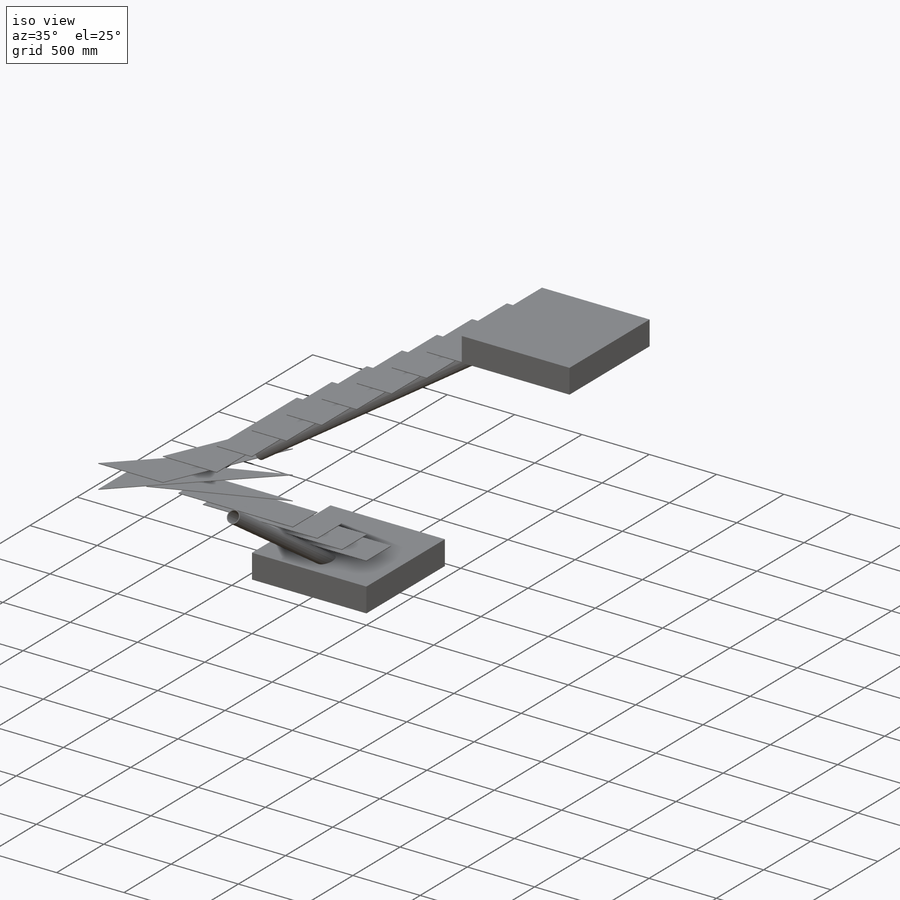
[diagram: iso view]
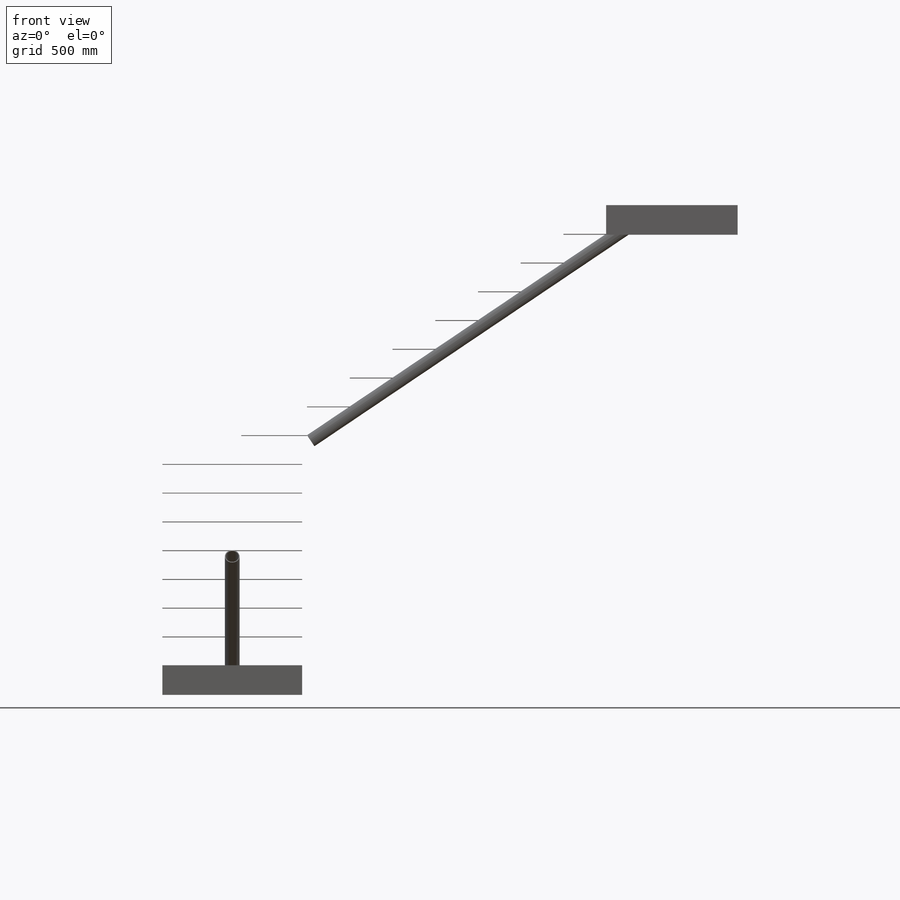
[diagram: front view]
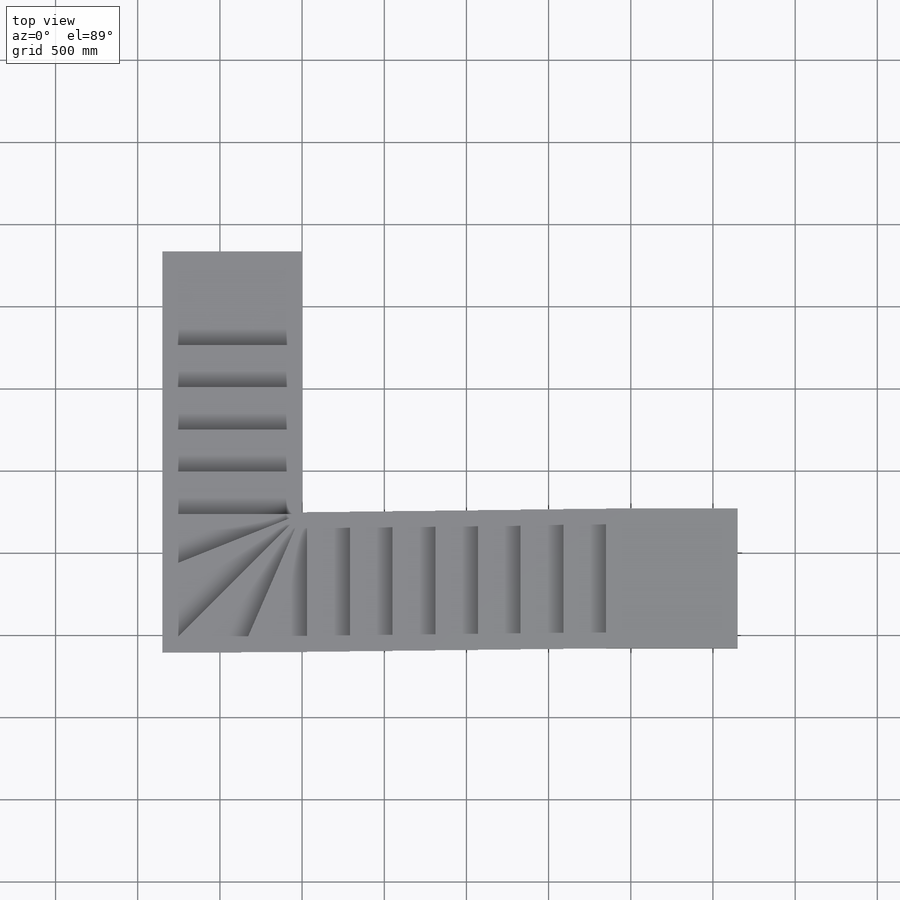
[diagram: top view]
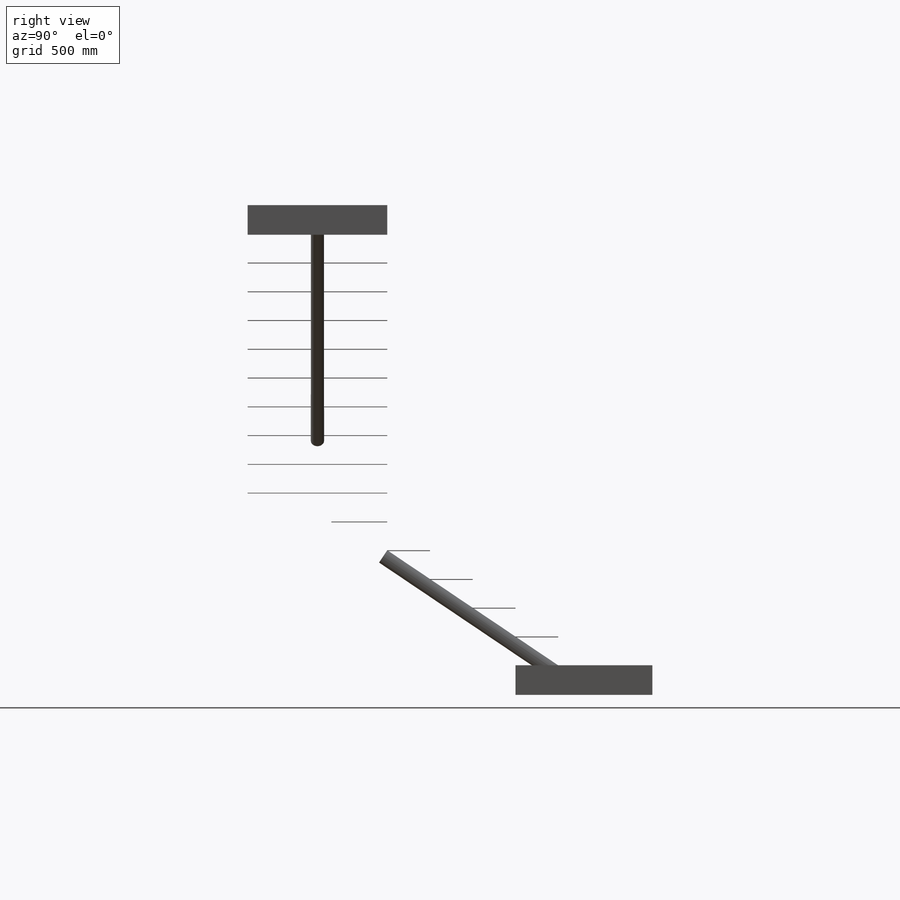
[diagram: right view]
SOLIDWORKS PART (.sldprt)
format: sldprt  version: not decoded by parser v0  size: 400,896 bytes
history: native  units: mm
features: sketch x26, plane x21, extrude x19, material x1 + 1 further entry (+15 scaffold rows collapsed)
feature tree (83):
  scaffold x15  (default folders/planes/origin — collapsed)
  material  "Material <not specified>"
  "Annotations"  RD1=700mm
  plane  "Plane1"  Offset=175mm
  plane  "Plane2"  Offset=350mm
  plane  "Plane3"  Offset=525mm
  plane  "Plane4"  Offset=700mm
  plane  "Plane5"  Offset=875mm
  plane  "Plane6"  Offset=1050mm
  plane  "Plane7"  Offset=1225mm
  plane  "Plane8"  Offset=1400mm
  plane  "Plane9"  Offset=1575mm
  plane  "Plane10"  Offset=1750mm
  plane  "Plane11"  Offset=1925mm
  plane  "Plane12"  Offset=2100mm
  plane  "Plane13"  Offset=2275mm
  plane  "Plane14"  Offset=2450mm
  plane  "Plane15"  Offset=2625mm
  plane  "Plane16"  Offset=2800mm
  sketch  "Sketch1"  dims[D1=260.0mm]
  extrude  "Extrude1"  Depth=5mm
  sketch  "Sketch2"  dims[D1=260.0mm]
  extrude  "Extrude2"  Depth=5mm
  sketch  "Sketch3"  dims[D1=260.0mm]
  extrude  "Extrude3"  Depth=5mm
  sketch  "Sketch4"  dims[D1=260.0mm]
  extrude  "Extrude4"  Depth=5mm
  sketch  "Sketch6"  dims[D1=340.0mm]
  extrude  "Extrude6"  Depth=5mm
  sketch  "Sketch7"  dims[D1=510.0mm]
  extrude  "Extrude7"  Depth=5mm
  sketch  "Sketch8"  dims[D1=480.0mm]
  extrude  "Extrude8"  Depth=5mm
  sketch  "Sketch9"  dims[D1=400.0mm]
  extrude  "Extrude9"  Depth=5mm
  sketch  "Sketch10"  dims[D1=260.0mm]
  extrude  "Extrude10"  Depth=5mm
  sketch  "Sketch11"  dims[D1=260.0mm]
  extrude  "Extrude11"  Depth=5mm
  sketch  "Sketch12"  dims[D1=260.0mm]
  extrude  "Extrude12"  Depth=5mm
  sketch  "Sketch13"  dims[D1=260.0mm]
  extrude  "Extrude13"  Depth=5mm
  sketch  "Sketch14"  dims[D1=260.0mm]
  extrude  "Extrude14"  Depth=5mm
  sketch  "Sketch15"  dims[D1=260.0mm]
  extrude  "Extrude15"  Depth=5mm
  sketch  "Sketch18"  dims[D1=260.0mm]
  extrude  "Extrude16"  Depth=5mm
  sketch  "Sketch21"  dims[D1=800.0mm]
  extrude  "Extrude18"  Depth=180mm
  plane  "Plane18"  Offset=175mm
  sketch  "Sketch23"
  extrude  "Extrude20"  Depth=180mm
  plane  "Plane19"  Offset=425mm
  sketch  "3DSketch1"
  plane  "Plane21"
  sketch  "Sketch27"  dims[D1=89.9mm D2=5.0mm]
  extrude  "Extrude21"  [1 undecoded]
  sketch  "3DSketch2"
  plane  "Plane22"
  plane  "Plane23"
  sketch  "Sketch35"  dims[D1=80.9mm D2=5.0mm]
  extrude  "Extrude22"  [1 undecoded]
  sketch  "Sketch37"
  sketch  "Sketch38"
  sketch  "Sketch39"
  sketch  "3DSketch3"
  sketch  "Sketch41"
decode coverage: 35 of 45 modeling features carry decoded parameters; 1 rows unclassified (native names shown)
note: 2 parameter values undecoded
note: suppression state not decoded; provenance and decode notes live in map.json
